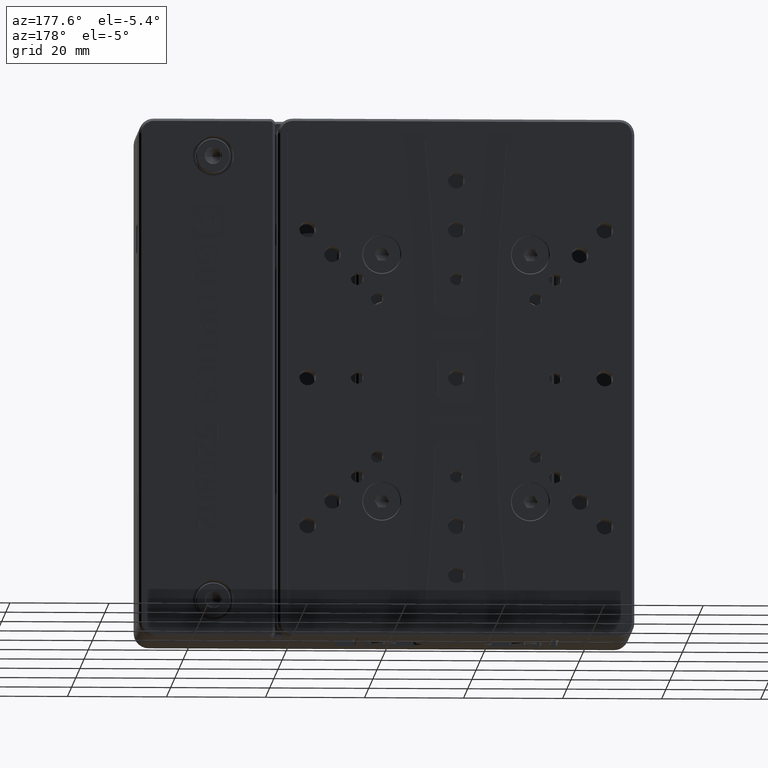
[diagram: clean part render]
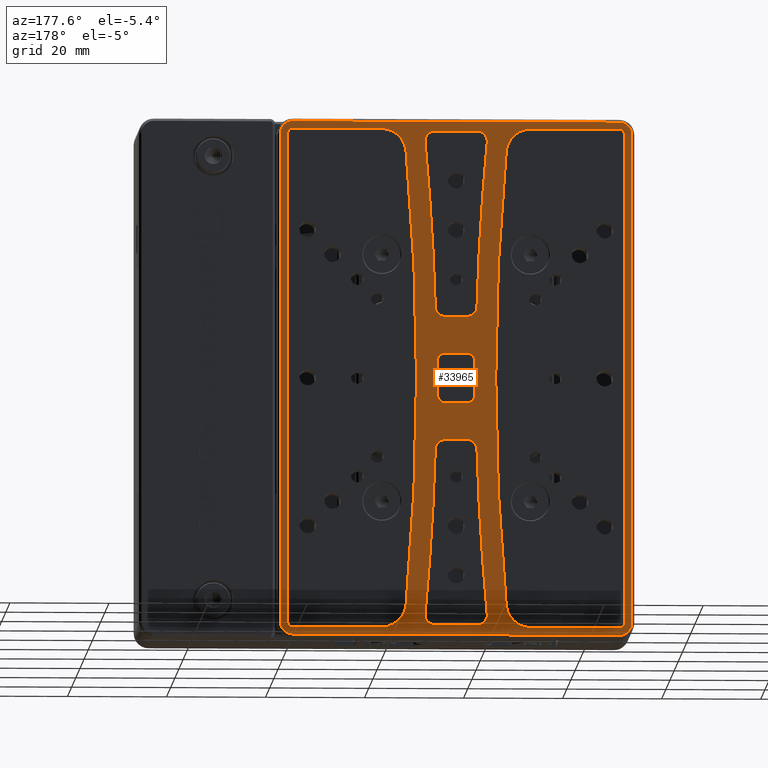
[diagram: same view with one face highlighted and labeled with its STEP entity id]
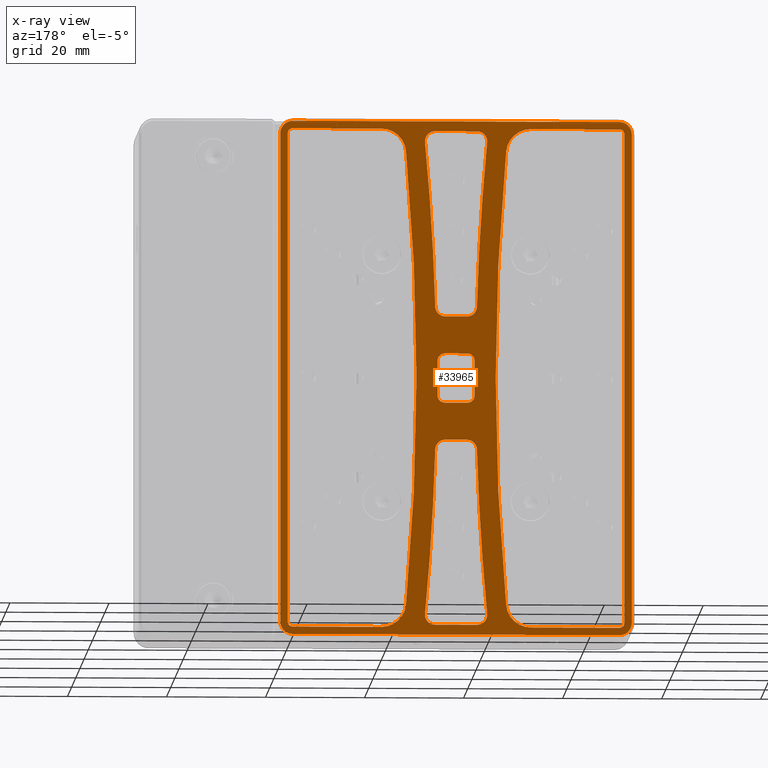
[diagram: x-ray of the same camera — body ghosted, the highlighted face saturated]
A machine part, auxiliary view. The second image highlights one B-rep face of the part: STEP entity #33965.
The next image is the same camera in x-ray: the body ghosted, the highlighted face saturated — about 0% of this face is hidden behind the body in this view.
In plain terms, the highlighted planar face has unit normal (-0, 1, 0).
Its self-contained STEP definition (entity closure, byte-faithful):
#25 = EDGE_CURVE ( 'NONE', #17213, #19173, #30582, .T. ) ;
#27 = CARTESIAN_POINT ( 'NONE',  ( -14.00000000000000000, 7.000000000000000000, 12.50000000000000000 ) ) ;
#177 = ORIENTED_EDGE ( 'NONE', *, *, #25202, .F. ) ;
#290 = CARTESIAN_POINT ( 'NONE',  ( -17.75000000000000000, 7.000000000000000000, -3.500000000000000000 ) ) ;
#546 = ORIENTED_EDGE ( 'NONE', *, *, #14687, .F. ) ;
#603 = DIRECTION ( 'NONE',  ( 1.000000000000000000, -0.0000000000000000000, -0.0000000000000000000 ) ) ;
#738 = CARTESIAN_POINT ( 'NONE',  ( -16.25000000000000000, 7.000000000000000000, -3.500000000000000000 ) ) ;
#865 = EDGE_CURVE ( 'NONE', #37944, #8095, #26633, .T. ) ;
#953 = VERTEX_POINT ( 'NONE', #4806 ) ;
#1231 = ORIENTED_EDGE ( 'NONE', *, *, #30412, .F. ) ;
#1416 = CARTESIAN_POINT ( 'NONE',  ( -47.00000000000000000, 7.000000000000000000, 49.50000000000000000 ) ) ;
#1538 = AXIS2_PLACEMENT_3D ( 'NONE', #10134, #48059, #17558 ) ;
#1604 = DIRECTION ( 'NONE',  ( 0.0000000000000000000, 1.000000000000000000, 0.0000000000000000000 ) ) ;
#1632 = EDGE_CURVE ( 'NONE', #10054, #29090, #20631, .T. ) ;
#1729 = CARTESIAN_POINT ( 'NONE',  ( -49.49999999850079746, 6.999999999998520295, 49.49999998350499908 ) ) ;
#1767 = VECTOR ( 'NONE', #43119, 1000.000000000000000 ) ;
#1769 = CARTESIAN_POINT ( 'NONE',  ( -18.28182482661999941, 7.000000000000000000, -50.00000000000059686 ) ) ;
#1880 = EDGE_CURVE ( 'NONE', #42972, #22066, #37283, .T. ) ;
#2012 = EDGE_CURVE ( 'NONE', #10859, #21619, #28587, .T. ) ;
#2104 = EDGE_CURVE ( 'NONE', #19547, #30789, #15166, .T. ) ;
#2170 = CARTESIAN_POINT ( 'NONE',  ( -47.00000000000000000, 7.000000000000000000, -50.50000000000000000 ) ) ;
#2459 = EDGE_CURVE ( 'NONE', #40581, #24917, #4395, .T. ) ;
#2473 = CARTESIAN_POINT ( 'NONE',  ( -20.27280575616005365, 7.000000000000000000, 47.81027667984089646 ) ) ;
#2744 = AXIS2_PLACEMENT_3D ( 'NONE', #7457, #22570, #27012 ) ;
#2751 = CARTESIAN_POINT ( 'NONE',  ( -14.00000000000000000, 7.000000000000000000, 50.00000000000000000 ) ) ;
#3031 = DIRECTION ( 'NONE',  ( 0.0000000000000000000, 1.000000000000000000, 0.0000000000000000000 ) ) ;
#3273 = CIRCLE ( 'NONE', #19896, 4.999999999999997335 ) ;
#3677 = CARTESIAN_POINT ( 'NONE',  ( -3.883234844506894490, 7.000000000000000000, -45.95959595959799771 ) ) ;
#3681 = EDGE_CURVE ( 'NONE', #43513, #43020, #3273, .T. ) ;
#3705 = ORIENTED_EDGE ( 'NONE', *, *, #24292, .F. ) ;
#3767 = EDGE_CURVE ( 'NONE', #16868, #45296, #43000, .T. ) ;
#3818 = LINE ( 'NONE', #26109, #25832 ) ;
#3855 = DIRECTION ( 'NONE',  ( 0.0000000000000000000, 0.0000000000000000000, -1.000000000000000000 ) ) ;
#3900 = ORIENTED_EDGE ( 'NONE', *, *, #23418, .F. ) ;
#4395 = LINE ( 'NONE', #4636, #7235 ) ;
#4636 = CARTESIAN_POINT ( 'NONE',  ( -14.00000000000000000, 7.000000003167500040, -51.99999999683250707 ) ) ;
#4658 = CARTESIAN_POINT ( 'NONE',  ( -29.09559750394000233, 7.000000000000000000, -45.50000000000000000 ) ) ;
#4806 = CARTESIAN_POINT ( 'NONE',  ( 20.00000000000000000, 7.000000000000000000, 49.50000000000000000 ) ) ;
#4808 = EDGE_LOOP ( 'NONE', ( #12051, #12299, #29079, #27269, #23272, #20934, #33591, #21140 ) ) ;
#4816 = ORIENTED_EDGE ( 'NONE', *, *, #22602, .F. ) ;
#4820 = CARTESIAN_POINT ( 'NONE',  ( 19.00000000000000000, 6.999999999998530065, -49.50000000000000000 ) ) ;
#4867 = VERTEX_POINT ( 'NONE', #14918 ) ;
#5019 = DIRECTION ( 'NONE',  ( 1.000000000000000000, -0.0000000000000000000, -0.0000000000000000000 ) ) ;
#5114 = CARTESIAN_POINT ( 'NONE',  ( -17.75000000000000000, 7.000000000000000000, 3.500000000000000000 ) ) ;
#5150 = LINE ( 'NONE', #7895, #21416 ) ;
#5573 = VECTOR ( 'NONE', #23487, 1000.000000000000000 ) ;
#5594 = DIRECTION ( 'NONE',  ( 0.0000000000000000000, 0.0000000000000000000, 1.000000000000000000 ) ) ;
#5637 = CARTESIAN_POINT ( 'NONE',  ( -16.20779958564000012, 7.000000000000000000, -14.50000000000000000 ) ) ;
#5731 = CARTESIAN_POINT ( 'NONE',  ( 19.00000000000000000, 7.000000001582649567, -51.99999999841520548 ) ) ;
#6261 = ORIENTED_EDGE ( 'NONE', *, *, #2012, .F. ) ;
#6404 = LINE ( 'NONE', #24747, #1767 ) ;
#6412 = AXIS2_PLACEMENT_3D ( 'NONE', #43045, #23942, #5594 ) ;
#6561 = DIRECTION ( 'NONE',  ( 2.056984358886074910E-17, 1.000000000000000000, 2.158625849183119980E-16 ) ) ;
#6598 = CARTESIAN_POINT ( 'NONE',  ( -11.75000000000000000, 7.000000000000000000, 5.000000000000000000 ) ) ;
#6729 = CARTESIAN_POINT ( 'NONE',  ( -49.49999999849929821, 6.999999999998530065, -49.49999998350499908 ) ) ;
#6845 = DIRECTION ( 'NONE',  ( 0.0000000000000000000, 0.0000000000000000000, 1.000000000000000000 ) ) ;
#7042 = AXIS2_PLACEMENT_3D ( 'NONE', #32168, #28420, #39847 ) ;
#7075 = AXIS2_PLACEMENT_3D ( 'NONE', #21411, #39541, #29357 ) ;
#7172 = ORIENTED_EDGE ( 'NONE', *, *, #42957, .F. ) ;
#7196 = CARTESIAN_POINT ( 'NONE',  ( -522.0000000000000000, 7.000000000000000000, 0.0000000000000000000 ) ) ;
#7235 = VECTOR ( 'NONE', #39088, 1000.000000000000000 ) ;
#7456 = EDGE_CURVE ( 'NONE', #20579, #7673, #11902, .T. ) ;
#7457 = CARTESIAN_POINT ( 'NONE',  ( -11.79220041435999988, 7.000000000000000000, -14.50000000000000000 ) ) ;
#7590 = CIRCLE ( 'NONE', #9181, 2.499999999998545164 ) ;
#7673 = VERTEX_POINT ( 'NONE', #18047 ) ;
#7895 = CARTESIAN_POINT ( 'NONE',  ( 20.00000000000000000, 7.000000000000000000, 0.0000000000000000000 ) ) ;
#7944 = DIRECTION ( 'NONE',  ( -2.056984358884024796E-17, 1.000000000000000000, -2.158625849182055017E-16 ) ) ;
#8095 = VERTEX_POINT ( 'NONE', #6598 ) ;
#8126 = LINE ( 'NONE', #24634, #5573 ) ;
#8148 = AXIS2_PLACEMENT_3D ( 'NONE', #22824, #45881, #23304 ) ;
#8237 = ORIENTED_EDGE ( 'NONE', *, *, #35208, .F. ) ;
#8417 = CARTESIAN_POINT ( 'NONE',  ( -14.00000000000000000, 7.000000000000000000, 51.99999999683000595 ) ) ;
#8545 = AXIS2_PLACEMENT_3D ( 'NONE', #29764, #26531, #26281 ) ;
#8597 = ORIENTED_EDGE ( 'NONE', *, *, #20692, .F. ) ;
#8686 = CARTESIAN_POINT ( 'NONE',  ( -20.27280575615949942, 7.000000000000000000, -47.81027667984100304 ) ) ;
#8766 = VERTEX_POINT ( 'NONE', #27563 ) ;
#8902 = DIRECTION ( 'NONE',  ( 0.0000000000000000000, 1.000000000000000000, 0.0000000000000000000 ) ) ;
#8932 = AXIS2_PLACEMENT_3D ( 'NONE', #15391, #38206, #42166 ) ;
#9181 = AXIS2_PLACEMENT_3D ( 'NONE', #33683, #41602, #14342 ) ;
#9196 = ORIENTED_EDGE ( 'NONE', *, *, #21988, .F. ) ;
#9202 = AXIS2_PLACEMENT_3D ( 'NONE', #14380, #45363, #18823 ) ;
#9759 = CARTESIAN_POINT ( 'NONE',  ( 1.095597503939000017, 7.000000000000000000, -45.50000000000000000 ) ) ;
#9780 = VECTOR ( 'NONE', #46738, 1000.000000000000000 ) ;
#9831 = DIRECTION ( 'NONE',  ( 0.0000000000000000000, 0.0000000000000000000, 1.000000000000000000 ) ) ;
#10054 = VERTEX_POINT ( 'NONE', #2473 ) ;
#10134 = CARTESIAN_POINT ( 'NONE',  ( 1.095597503939000017, 7.000000000000000000, 45.50000000000000000 ) ) ;
#10273 = CIRCLE ( 'NONE', #13448, 1.000000000000000888 ) ;
#10322 = EDGE_CURVE ( 'NONE', #953, #32300, #5150, .T. ) ;
#10592 = DIRECTION ( 'NONE',  ( 0.0000000000000000000, 0.0000000000000000000, 1.000000000000000000 ) ) ;
#10677 = AXIS2_PLACEMENT_3D ( 'NONE', #21067, #36208, #30607 ) ;
#10734 = DIRECTION ( 'NONE',  ( 0.0000000000000000000, 1.000000000000000000, 0.0000000000000000000 ) ) ;
#10791 = EDGE_LOOP ( 'NONE', ( #7172, #3705, #30232, #17003, #47362, #45453, #40679, #47543 ) ) ;
#10859 = VERTEX_POINT ( 'NONE', #18387 ) ;
#10873 = CARTESIAN_POINT ( 'NONE',  ( -48.00000000000000000, 7.000000000000000000, -49.50000000000000000 ) ) ;
#11107 = CARTESIAN_POINT ( 'NONE',  ( -11.79220041435999988, 7.000000000000000000, 14.50000000000000000 ) ) ;
#11202 = CARTESIAN_POINT ( 'NONE',  ( -49.49999999699999620, 7.000000000000000000, 0.0000000000000000000 ) ) ;
#11277 = DIRECTION ( 'NONE',  ( 6.213806916892490276E-18, 1.000000000000000000, -2.167513843928744975E-16 ) ) ;
#11449 = CIRCLE ( 'NONE', #2744, 2.000000000001609823 ) ;
#11574 = CARTESIAN_POINT ( 'NONE',  ( 494.0000000000000000, 7.000000000000000000, 0.0000000000000000000 ) ) ;
#11746 = EDGE_CURVE ( 'NONE', #48449, #40856, #6404, .T. ) ;
#11810 = VERTEX_POINT ( 'NONE', #21031 ) ;
#11902 = LINE ( 'NONE', #38912, #42307 ) ;
#12051 = ORIENTED_EDGE ( 'NONE', *, *, #7456, .F. ) ;
#12196 = CARTESIAN_POINT ( 'NONE',  ( -14.00000000000000000, 7.000000000000000000, -50.50000000000000000 ) ) ;
#12299 = ORIENTED_EDGE ( 'NONE', *, *, #22623, .F. ) ;
#12429 = ORIENTED_EDGE ( 'NONE', *, *, #3767, .F. ) ;
#12502 = DIRECTION ( 'NONE',  ( 1.000000000000000000, 0.0000000000000000000, 0.0000000000000000000 ) ) ;
#12507 = CIRCLE ( 'NONE', #8545, 2.499999999998530953 ) ;
#12635 = DIRECTION ( 'NONE',  ( -1.000000000000000000, -0.0000000000000000000, -0.0000000000000000000 ) ) ;
#12658 = EDGE_CURVE ( 'NONE', #19497, #25916, #19113, .T. ) ;
#12833 = VERTEX_POINT ( 'NONE', #1729 ) ;
#13001 = AXIS2_PLACEMENT_3D ( 'NONE', #5637, #47281, #13324 ) ;
#13273 = CIRCLE ( 'NONE', #15664, 2.499999999998530953 ) ;
#13317 = FACE_BOUND ( 'NONE', #13763, .T. ) ;
#13324 = DIRECTION ( 'NONE',  ( 0.0000000000000000000, 0.0000000000000000000, 1.000000000000000000 ) ) ;
#13410 = VECTOR ( 'NONE', #5019, 1000.000000000000000 ) ;
#13448 = AXIS2_PLACEMENT_3D ( 'NONE', #48739, #26412, #6845 ) ;
#13680 = CIRCLE ( 'NONE', #47718, 1.000000000000000888 ) ;
#13763 = EDGE_LOOP ( 'NONE', ( #47726, #31764, #40040, #177, #17414, #45727, #8237, #33612 ) ) ;
#13785 = CARTESIAN_POINT ( 'NONE',  ( -9.793021756594050942, 7.000000000000000000, 14.44268774703775904 ) ) ;
#14096 = VERTEX_POINT ( 'NONE', #2170 ) ;
#14342 = DIRECTION ( 'NONE',  ( 1.000000000000000000, -3.469446951955633180E-16, 0.0000000000000000000 ) ) ;
#14380 = CARTESIAN_POINT ( 'NONE',  ( -9.718175173378998721, 7.000000000000000000, -48.00000000000000000 ) ) ;
#14464 = CIRCLE ( 'NONE', #32649, 4.999999999999997335 ) ;
#14507 = VERTEX_POINT ( 'NONE', #15959 ) ;
#14636 = CARTESIAN_POINT ( 'NONE',  ( -9.718175173378998721, 7.000000000000000000, -50.00000000000000000 ) ) ;
#14687 = EDGE_CURVE ( 'NONE', #11810, #953, #13680, .T. ) ;
#14918 = CARTESIAN_POINT ( 'NONE',  ( -11.75000000000000000, 7.000000000000000000, -5.000000000000000000 ) ) ;
#15073 = CARTESIAN_POINT ( 'NONE',  ( -522.0000000000000000, 7.000000000000000000, 0.0000000000000000000 ) ) ;
#15166 = CIRCLE ( 'NONE', #26235, 1.500000000000000000 ) ;
#15391 = CARTESIAN_POINT ( 'NONE',  ( -11.75000000000000000, 7.000000000000000000, 3.500000000000000000 ) ) ;
#15485 = CIRCLE ( 'NONE', #47958, 2.000000000001125766 ) ;
#15493 = EDGE_CURVE ( 'NONE', #38487, #43513, #33417, .T. ) ;
#15595 = ORIENTED_EDGE ( 'NONE', *, *, #28663, .F. ) ;
#15664 = AXIS2_PLACEMENT_3D ( 'NONE', #4820, #19933, #12502 ) ;
#15899 = EDGE_CURVE ( 'NONE', #7673, #4867, #32048, .T. ) ;
#15928 = AXIS2_PLACEMENT_3D ( 'NONE', #41678, #48364, #37960 ) ;
#15959 = CARTESIAN_POINT ( 'NONE',  ( -11.79220041435999988, 7.000000000000000000, -12.49999999999919886 ) ) ;
#16594 = CIRCLE ( 'NONE', #7075, 504.0000000000000000 ) ;
#16694 = VERTEX_POINT ( 'NONE', #24368 ) ;
#16868 = VERTEX_POINT ( 'NONE', #22617 ) ;
#16911 = EDGE_CURVE ( 'NONE', #32482, #37944, #32901, .T. ) ;
#17003 = ORIENTED_EDGE ( 'NONE', *, *, #37760, .F. ) ;
#17035 = PLANE ( 'NONE',  #7042 ) ;
#17050 = VERTEX_POINT ( 'NONE', #1769 ) ;
#17110 = EDGE_CURVE ( 'NONE', #43020, #43751, #35309, .T. ) ;
#17193 = DIRECTION ( 'NONE',  ( 1.000000000000000000, -0.0000000000000000000, -0.0000000000000000000 ) ) ;
#17213 = VERTEX_POINT ( 'NONE', #30168 ) ;
#17414 = ORIENTED_EDGE ( 'NONE', *, *, #46975, .F. ) ;
#17461 = VECTOR ( 'NONE', #37744, 1000.000000000000000 ) ;
#17558 = DIRECTION ( 'NONE',  ( 0.0000000000000000000, 0.0000000000000000000, 1.000000000000000000 ) ) ;
#17843 = ORIENTED_EDGE ( 'NONE', *, *, #34105, .F. ) ;
#18008 = CIRCLE ( 'NONE', #20414, 4.999999999999997335 ) ;
#18047 = CARTESIAN_POINT ( 'NONE',  ( -10.25000000000000000, 7.000000000000000000, -3.500000000000000000 ) ) ;
#18141 = CARTESIAN_POINT ( 'NONE',  ( 19.00000000000000000, 7.000000000000000000, 49.50000000000000000 ) ) ;
#18156 = ORIENTED_EDGE ( 'NONE', *, *, #27413, .F. ) ;
#18387 = CARTESIAN_POINT ( 'NONE',  ( -24.11676515549299893, 7.000000000000000000, 45.95959595959799771 ) ) ;
#18823 = DIRECTION ( 'NONE',  ( 0.0000000000000000000, 0.0000000000000000000, 1.000000000000000000 ) ) ;
#19096 = ORIENTED_EDGE ( 'NONE', *, *, #31617, .F. ) ;
#19113 = CIRCLE ( 'NONE', #15928, 2.499999999998530953 ) ;
#19173 = VERTEX_POINT ( 'NONE', #14636 ) ;
#19432 = AXIS2_PLACEMENT_3D ( 'NONE', #1416, #27181, #19521 ) ;
#19497 = VERTEX_POINT ( 'NONE', #37571 ) ;
#19521 = DIRECTION ( 'NONE',  ( 0.0000000000000000000, 0.0000000000000000000, 1.000000000000000000 ) ) ;
#19543 = AXIS2_PLACEMENT_3D ( 'NONE', #15073, #37397, #37148 ) ;
#19547 = VERTEX_POINT ( 'NONE', #42512 ) ;
#19558 = EDGE_CURVE ( 'NONE', #40581, #20213, #13273, .T. ) ;
#19717 = CARTESIAN_POINT ( 'NONE',  ( -9.793021756595489791, 7.000000000000000000, -14.44268774703784075 ) ) ;
#19774 = DIRECTION ( 'NONE',  ( 0.0000000000000000000, 1.000000000000000000, 0.0000000000000000000 ) ) ;
#19896 = AXIS2_PLACEMENT_3D ( 'NONE', #9759, #1604, #43482 ) ;
#19933 = DIRECTION ( 'NONE',  ( -1.734723475977824725E-16, -1.000000000000000000, -3.611118645730314473E-31 ) ) ;
#20054 = EDGE_CURVE ( 'NONE', #24917, #37247, #12507, .T. ) ;
#20213 = VERTEX_POINT ( 'NONE', #23530 ) ;
#20269 = DIRECTION ( 'NONE',  ( -0.0000000000000000000, -0.0000000000000000000, -1.000000000000000000 ) ) ;
#20338 = VERTEX_POINT ( 'NONE', #33986 ) ;
#20414 = AXIS2_PLACEMENT_3D ( 'NONE', #45041, #29173, #37857 ) ;
#20579 = VERTEX_POINT ( 'NONE', #39883 ) ;
#20631 = CIRCLE ( 'NONE', #6412, 2.000000000001125766 ) ;
#20692 = EDGE_CURVE ( 'NONE', #44309, #8766, #22048, .T. ) ;
#20934 = ORIENTED_EDGE ( 'NONE', *, *, #2104, .F. ) ;
#21031 = CARTESIAN_POINT ( 'NONE',  ( 19.00000000000000000, 7.000000000000000000, 50.50000000000000000 ) ) ;
#21067 = CARTESIAN_POINT ( 'NONE',  ( -11.75000000000000000, 7.000000000000000000, -3.500000000000000000 ) ) ;
#21140 = ORIENTED_EDGE ( 'NONE', *, *, #15899, .F. ) ;
#21213 = AXIS2_PLACEMENT_3D ( 'NONE', #38699, #42904, #39180 ) ;
#21350 = VERTEX_POINT ( 'NONE', #39158 ) ;
#21411 = CARTESIAN_POINT ( 'NONE',  ( 494.0000000000000000, 7.000000000000000000, 0.0000000000000000000 ) ) ;
#21416 = VECTOR ( 'NONE', #20269, 1000.000000000000000 ) ;
#21491 = EDGE_CURVE ( 'NONE', #43751, #45870, #41140, .T. ) ;
#21619 = VERTEX_POINT ( 'NONE', #30201 ) ;
#21630 = LINE ( 'NONE', #47918, #36786 ) ;
#21905 = ORIENTED_EDGE ( 'NONE', *, *, #36559, .F. ) ;
#21969 = FACE_BOUND ( 'NONE', #34049, .T. ) ;
#21988 = EDGE_CURVE ( 'NONE', #14096, #48449, #10273, .T. ) ;
#22041 = CIRCLE ( 'NONE', #45807, 2.000000000000126565 ) ;
#22048 = CIRCLE ( 'NONE', #22840, 2.000000000001609823 ) ;
#22066 = VERTEX_POINT ( 'NONE', #27382 ) ;
#22570 = DIRECTION ( 'NONE',  ( -6.213806916917330150E-18, 1.000000000000000000, 2.167513843933069905E-16 ) ) ;
#22602 = EDGE_CURVE ( 'NONE', #32300, #38487, #23959, .T. ) ;
#22617 = CARTESIAN_POINT ( 'NONE',  ( -47.00000000000000000, 7.000000000000000000, 50.50000000000000000 ) ) ;
#22623 = EDGE_CURVE ( 'NONE', #8095, #20579, #35057, .T. ) ;
#22732 = CARTESIAN_POINT ( 'NONE',  ( 20.00000000000000000, 7.000000000000000000, -49.50000000000000000 ) ) ;
#22799 = DIRECTION ( 'NONE',  ( 0.0000000000000000000, 1.000000000000000000, 0.0000000000000000000 ) ) ;
#22824 = CARTESIAN_POINT ( 'NONE',  ( 19.00000000000000000, 7.000000000000000000, -49.50000000000000000 ) ) ;
#22840 = AXIS2_PLACEMENT_3D ( 'NONE', #11107, #26217, #44576 ) ;
#22847 = ORIENTED_EDGE ( 'NONE', *, *, #11746, .F. ) ;
#22873 = CARTESIAN_POINT ( 'NONE',  ( -3.883234844505884631, 7.000000000000000000, 45.95959595959799771 ) ) ;
#23045 = AXIS2_PLACEMENT_3D ( 'NONE', #34349, #11277, #3855 ) ;
#23056 = DIRECTION ( 'NONE',  ( 0.0000000000000000000, 0.0000000000000000000, -1.000000000000000000 ) ) ;
#23096 = LINE ( 'NONE', #12196, #24031 ) ;
#23272 = ORIENTED_EDGE ( 'NONE', *, *, #35882, .F. ) ;
#23304 = DIRECTION ( 'NONE',  ( 0.0000000000000000000, 0.0000000000000000000, 1.000000000000000000 ) ) ;
#23418 = EDGE_CURVE ( 'NONE', #29090, #46505, #39933, .T. ) ;
#23487 = DIRECTION ( 'NONE',  ( -0.0000000000000000000, -0.0000000000000000000, 1.000000000000000000 ) ) ;
#23530 = CARTESIAN_POINT ( 'NONE',  ( 21.49999999849925203, 6.999999999998530065, -49.49999998762920228 ) ) ;
#23702 = EDGE_CURVE ( 'NONE', #20338, #14096, #23096, .T. ) ;
#23782 = CARTESIAN_POINT ( 'NONE',  ( -14.00000000000000000, 7.000000000000000000, -5.000000000000000000 ) ) ;
#23849 = CARTESIAN_POINT ( 'NONE',  ( -14.00000000000000000, 7.000000000000000000, -12.50000000000000000 ) ) ;
#23942 = DIRECTION ( 'NONE',  ( 0.0000000000000000000, 1.000000000000000000, 0.0000000000000000000 ) ) ;
#23959 = CIRCLE ( 'NONE', #8148, 1.000000000000000888 ) ;
#24031 = VECTOR ( 'NONE', #38725, 1000.000000000000000 ) ;
#24292 = EDGE_CURVE ( 'NONE', #25916, #16694, #42877, .T. ) ;
#24368 = CARTESIAN_POINT ( 'NONE',  ( -46.99999998756499764, 6.999999999998520295, 51.99999999841430309 ) ) ;
#24529 = CARTESIAN_POINT ( 'NONE',  ( 19.00000000000000000, 7.000000000000000000, -50.50000000000000000 ) ) ;
#24634 = CARTESIAN_POINT ( 'NONE',  ( -17.75000000000000000, 7.000000000000000000, 0.0000000000000000000 ) ) ;
#24705 = FACE_BOUND ( 'NONE', #4808, .T. ) ;
#24747 = CARTESIAN_POINT ( 'NONE',  ( -48.00000000000000000, 7.000000000000000000, 0.0000000000000000000 ) ) ;
#24886 = ORIENTED_EDGE ( 'NONE', *, *, #17110, .F. ) ;
#24917 = VERTEX_POINT ( 'NONE', #45517 ) ;
#25202 = EDGE_CURVE ( 'NONE', #14507, #41638, #11449, .T. ) ;
#25429 = CARTESIAN_POINT ( 'NONE',  ( -9.718175173378998721, 7.000000000000000000, 50.00000000000000000 ) ) ;
#25683 = FACE_OUTER_BOUND ( 'NONE', #10791, .T. ) ;
#25808 = CARTESIAN_POINT ( 'NONE',  ( -18.28182482661999941, 7.000000000000000000, 50.00000000000000000 ) ) ;
#25832 = VECTOR ( 'NONE', #41491, 1000.000000000000000 ) ;
#25916 = VERTEX_POINT ( 'NONE', #38327 ) ;
#26109 = CARTESIAN_POINT ( 'NONE',  ( -14.00000000000000000, 7.000000000000000000, 50.50000000000000000 ) ) ;
#26217 = DIRECTION ( 'NONE',  ( 0.0000000000000000000, 1.000000000000000000, 0.0000000000000000000 ) ) ;
#26235 = AXIS2_PLACEMENT_3D ( 'NONE', #738, #8902, #46095 ) ;
#26281 = DIRECTION ( 'NONE',  ( 1.000000000000000000, 0.0000000000000000000, 0.0000000000000000000 ) ) ;
#26412 = DIRECTION ( 'NONE',  ( 0.0000000000000000000, 1.000000000000000000, 0.0000000000000000000 ) ) ;
#26452 = CARTESIAN_POINT ( 'NONE',  ( -7.727194243841020160, 7.000000000000000000, 47.81027667984100304 ) ) ;
#26531 = DIRECTION ( 'NONE',  ( 1.734723475977824725E-16, 1.000000000000000000, -0.0000000000000000000 ) ) ;
#26633 = LINE ( 'NONE', #34577, #28157 ) ;
#26668 = EDGE_CURVE ( 'NONE', #8766, #42972, #29282, .T. ) ;
#26919 = AXIS2_PLACEMENT_3D ( 'NONE', #47462, #48199, #29360 ) ;
#27012 = DIRECTION ( 'NONE',  ( -1.734723475975410811E-15, 0.0000000000000000000, -1.000000000000000000 ) ) ;
#27181 = DIRECTION ( 'NONE',  ( 0.0000000000000000000, 1.000000000000000000, 0.0000000000000000000 ) ) ;
#27269 = ORIENTED_EDGE ( 'NONE', *, *, #16911, .F. ) ;
#27382 = CARTESIAN_POINT ( 'NONE',  ( -18.20697824340720317, 7.000000000000000000, 14.44268774703779812 ) ) ;
#27413 = EDGE_CURVE ( 'NONE', #40856, #16868, #48744, .T. ) ;
#27563 = CARTESIAN_POINT ( 'NONE',  ( -11.79220041435999988, 7.000000000000000000, 12.50000000000000000 ) ) ;
#27639 = CARTESIAN_POINT ( 'NONE',  ( 21.49999999699999975, 7.000000000000000000, 0.0000000000000000000 ) ) ;
#28157 = VECTOR ( 'NONE', #603, 1000.000000000000000 ) ;
#28321 = EDGE_CURVE ( 'NONE', #4867, #19547, #35935, .T. ) ;
#28340 = CARTESIAN_POINT ( 'NONE',  ( 1.095597503939000017, 7.000000000000000000, -50.50000000000000000 ) ) ;
#28420 = DIRECTION ( 'NONE',  ( -0.0000000000000000000, 1.000000000000000000, 0.0000000000000000000 ) ) ;
#28473 = CARTESIAN_POINT ( 'NONE',  ( -48.00000000000000000, 7.000000000000000000, 49.50000000000000000 ) ) ;
#28511 = DIRECTION ( 'NONE',  ( 1.000000000000000000, -0.0000000000000000000, -0.0000000000000000000 ) ) ;
#28587 = CIRCLE ( 'NONE', #36530, 500.0000000000000000 ) ;
#28663 = EDGE_CURVE ( 'NONE', #45870, #11810, #3818, .T. ) ;
#29079 = ORIENTED_EDGE ( 'NONE', *, *, #865, .F. ) ;
#29090 = VERTEX_POINT ( 'NONE', #25808 ) ;
#29173 = DIRECTION ( 'NONE',  ( 0.0000000000000000000, 1.000000000000000000, 0.0000000000000000000 ) ) ;
#29256 = VERTEX_POINT ( 'NONE', #8686 ) ;
#29282 = LINE ( 'NONE', #27, #44699 ) ;
#29357 = DIRECTION ( 'NONE',  ( 0.0000000000000000000, 0.0000000000000000000, 1.000000000000000000 ) ) ;
#29360 = DIRECTION ( 'NONE',  ( 1.519948188474916617E-14, 0.0000000000000000000, 1.000000000000000000 ) ) ;
#29422 = FACE_BOUND ( 'NONE', #48129, .T. ) ;
#29434 = DIRECTION ( 'NONE',  ( 0.0000000000000000000, 1.000000000000000000, 0.0000000000000000000 ) ) ;
#29569 = CARTESIAN_POINT ( 'NONE',  ( -16.25000000000000000, 7.000000000000000000, 3.500000000000000000 ) ) ;
#29764 = CARTESIAN_POINT ( 'NONE',  ( -47.00000000000000000, 6.999999999998530065, -49.50000000000000000 ) ) ;
#30168 = CARTESIAN_POINT ( 'NONE',  ( -7.727194243839909937, 7.000000000000000000, -47.81027667984100304 ) ) ;
#30201 = CARTESIAN_POINT ( 'NONE',  ( -24.11676515549510214, 7.000000000000000000, -45.95959595959769928 ) ) ;
#30232 = ORIENTED_EDGE ( 'NONE', *, *, #12658, .F. ) ;
#30265 = DIRECTION ( 'NONE',  ( -1.000000000000000000, -0.0000000000000000000, -0.0000000000000000000 ) ) ;
#30294 = ORIENTED_EDGE ( 'NONE', *, *, #43985, .F. ) ;
#30412 = EDGE_CURVE ( 'NONE', #45296, #10859, #18008, .T. ) ;
#30582 = CIRCLE ( 'NONE', #9202, 2.000000000000126565 ) ;
#30607 = DIRECTION ( 'NONE',  ( 0.0000000000000000000, 0.0000000000000000000, 1.000000000000000000 ) ) ;
#30789 = VERTEX_POINT ( 'NONE', #290 ) ;
#31244 = VECTOR ( 'NONE', #41827, 1000.000000000000000 ) ;
#31617 = EDGE_CURVE ( 'NONE', #46505, #32315, #22041, .T. ) ;
#31636 = LINE ( 'NONE', #27639, #9780 ) ;
#31764 = ORIENTED_EDGE ( 'NONE', *, *, #25, .F. ) ;
#32048 = CIRCLE ( 'NONE', #10677, 1.500000000000000000 ) ;
#32168 = CARTESIAN_POINT ( 'NONE',  ( -50.92000000000000171, 7.000000000000000000, 54.08000000000000540 ) ) ;
#32300 = VERTEX_POINT ( 'NONE', #22732 ) ;
#32315 = VERTEX_POINT ( 'NONE', #26452 ) ;
#32461 = CARTESIAN_POINT ( 'NONE',  ( -29.09559750394000233, 7.000000000000000000, 50.50000000000000000 ) ) ;
#32482 = VERTEX_POINT ( 'NONE', #5114 ) ;
#32649 = AXIS2_PLACEMENT_3D ( 'NONE', #4658, #19774, #9831 ) ;
#32901 = CIRCLE ( 'NONE', #43189, 1.500000000000000000 ) ;
#33008 = EDGE_CURVE ( 'NONE', #41638, #17213, #40233, .T. ) ;
#33417 = LINE ( 'NONE', #44802, #31244 ) ;
#33591 = ORIENTED_EDGE ( 'NONE', *, *, #28321, .F. ) ;
#33612 = ORIENTED_EDGE ( 'NONE', *, *, #40753, .F. ) ;
#33615 = VECTOR ( 'NONE', #39394, 1000.000000000000000 ) ;
#33651 = CARTESIAN_POINT ( 'NONE',  ( -16.20779958564000012, 7.000000000000000000, -12.50000000000000000 ) ) ;
#33683 = CARTESIAN_POINT ( 'NONE',  ( -47.00000000000000000, 6.999999999998520295, 49.50000000000000000 ) ) ;
#33839 = CARTESIAN_POINT ( 'NONE',  ( -16.25000000000000000, 7.000000000000000000, 5.000000000000000000 ) ) ;
#33965 = ADVANCED_FACE ( 'NONE', ( #29422, #21969, #13317, #24705, #44542, #25683 ), #17035, .T. ) ;
#33974 = VERTEX_POINT ( 'NONE', #33651 ) ;
#33986 = CARTESIAN_POINT ( 'NONE',  ( -29.09559750394000233, 7.000000000000000000, -50.50000000000000000 ) ) ;
#34049 = EDGE_LOOP ( 'NONE', ( #44788, #8597, #17843, #19096, #3900, #36154, #30294, #38603 ) ) ;
#34105 = EDGE_CURVE ( 'NONE', #32315, #44309, #16594, .T. ) ;
#34349 = CARTESIAN_POINT ( 'NONE',  ( -16.20779958564000012, 7.000000000000000000, 14.50000000000000000 ) ) ;
#34577 = CARTESIAN_POINT ( 'NONE',  ( -14.00000000000000000, 7.000000000000000000, 5.000000000000000000 ) ) ;
#35057 = CIRCLE ( 'NONE', #8932, 1.500000000000000000 ) ;
#35208 = EDGE_CURVE ( 'NONE', #29256, #21350, #48307, .T. ) ;
#35309 = CIRCLE ( 'NONE', #47139, 500.0000000000000000 ) ;
#35539 = EDGE_CURVE ( 'NONE', #12833, #37247, #48394, .T. ) ;
#35716 = VECTOR ( 'NONE', #17193, 1000.000000000000000 ) ;
#35882 = EDGE_CURVE ( 'NONE', #30789, #32482, #8126, .T. ) ;
#35935 = LINE ( 'NONE', #23782, #37713 ) ;
#36154 = ORIENTED_EDGE ( 'NONE', *, *, #1632, .F. ) ;
#36208 = DIRECTION ( 'NONE',  ( 0.0000000000000000000, 1.000000000000000000, 0.0000000000000000000 ) ) ;
#36530 = AXIS2_PLACEMENT_3D ( 'NONE', #7196, #22799, #41659 ) ;
#36559 = EDGE_CURVE ( 'NONE', #21619, #20338, #14464, .T. ) ;
#36786 = VECTOR ( 'NONE', #40247, 1000.000000000000000 ) ;
#37076 = EDGE_LOOP ( 'NONE', ( #18156, #22847, #9196, #43908, #21905, #6261, #1231, #12429 ) ) ;
#37148 = DIRECTION ( 'NONE',  ( 1.608061126937230789E-14, 0.0000000000000000000, 1.000000000000000000 ) ) ;
#37247 = VERTEX_POINT ( 'NONE', #6729 ) ;
#37283 = CIRCLE ( 'NONE', #23045, 2.000000000005604850 ) ;
#37397 = DIRECTION ( 'NONE',  ( -0.0000000000000000000, -1.000000000000000000, -0.0000000000000000000 ) ) ;
#37501 = VECTOR ( 'NONE', #28511, 1000.000000000000000 ) ;
#37571 = CARTESIAN_POINT ( 'NONE',  ( 21.49999999849925203, 6.999999999998530065, 49.49999998350499908 ) ) ;
#37713 = VECTOR ( 'NONE', #12635, 1000.000000000000000 ) ;
#37744 = DIRECTION ( 'NONE',  ( -0.0000000000000000000, -0.0000000000000000000, -1.000000000000000000 ) ) ;
#37760 = EDGE_CURVE ( 'NONE', #20213, #19497, #31636, .T. ) ;
#37857 = DIRECTION ( 'NONE',  ( 0.0000000000000000000, 0.0000000000000000000, 1.000000000000000000 ) ) ;
#37944 = VERTEX_POINT ( 'NONE', #33839 ) ;
#37960 = DIRECTION ( 'NONE',  ( 1.000000000000000000, -3.469446951955652901E-16, 0.0000000000000000000 ) ) ;
#38206 = DIRECTION ( 'NONE',  ( 0.0000000000000000000, 1.000000000000000000, 0.0000000000000000000 ) ) ;
#38327 = CARTESIAN_POINT ( 'NONE',  ( 18.99999998756500119, 6.999999999998530065, 51.99999999841570286 ) ) ;
#38487 = VERTEX_POINT ( 'NONE', #24529 ) ;
#38559 = CIRCLE ( 'NONE', #19543, 504.0000000000000000 ) ;
#38603 = ORIENTED_EDGE ( 'NONE', *, *, #1880, .F. ) ;
#38699 = CARTESIAN_POINT ( 'NONE',  ( 494.0000000000000000, 7.000000000000000000, 0.0000000000000000000 ) ) ;
#38725 = DIRECTION ( 'NONE',  ( -1.000000000000000000, -0.0000000000000000000, -0.0000000000000000000 ) ) ;
#38782 = EDGE_CURVE ( 'NONE', #21350, #33974, #43089, .T. ) ;
#38912 = CARTESIAN_POINT ( 'NONE',  ( -10.25000000000000000, 7.000000000000000000, 0.0000000000000000000 ) ) ;
#39088 = DIRECTION ( 'NONE',  ( -1.000000000000000000, -0.0000000000000000000, -0.0000000000000000000 ) ) ;
#39158 = CARTESIAN_POINT ( 'NONE',  ( -18.20697824340994941, 7.000000000000000000, -14.44268774703770042 ) ) ;
#39180 = DIRECTION ( 'NONE',  ( 0.0000000000000000000, 0.0000000000000000000, 1.000000000000000000 ) ) ;
#39376 = EDGE_CURVE ( 'NONE', #19173, #17050, #21630, .T. ) ;
#39379 = ORIENTED_EDGE ( 'NONE', *, *, #10322, .F. ) ;
#39394 = DIRECTION ( 'NONE',  ( -1.000000000000000000, -0.0000000000000000000, -0.0000000000000000000 ) ) ;
#39497 = ORIENTED_EDGE ( 'NONE', *, *, #21491, .F. ) ;
#39517 = CARTESIAN_POINT ( 'NONE',  ( -14.00000000000000000, 7.000000000000000000, 50.50000000000000000 ) ) ;
#39541 = DIRECTION ( 'NONE',  ( -0.0000000000000000000, -1.000000000000000000, -0.0000000000000000000 ) ) ;
#39847 = DIRECTION ( 'NONE',  ( 1.000000000000000000, 0.0000000000000000000, 0.0000000000000000000 ) ) ;
#39883 = CARTESIAN_POINT ( 'NONE',  ( -10.25000000000000000, 7.000000000000000000, 3.500000000000000000 ) ) ;
#39933 = LINE ( 'NONE', #2751, #37501 ) ;
#40040 = ORIENTED_EDGE ( 'NONE', *, *, #33008, .F. ) ;
#40233 = CIRCLE ( 'NONE', #21213, 504.0000000000000000 ) ;
#40247 = DIRECTION ( 'NONE',  ( -1.000000000000000000, -0.0000000000000000000, -0.0000000000000000000 ) ) ;
#40581 = VERTEX_POINT ( 'NONE', #5731 ) ;
#40679 = ORIENTED_EDGE ( 'NONE', *, *, #20054, .T. ) ;
#40753 = EDGE_CURVE ( 'NONE', #17050, #29256, #15485, .T. ) ;
#40856 = VERTEX_POINT ( 'NONE', #28473 ) ;
#41024 = CARTESIAN_POINT ( 'NONE',  ( -9.718175173378998721, 7.000000000000000000, 48.00000000000000000 ) ) ;
#41140 = CIRCLE ( 'NONE', #1538, 4.999999999999997335 ) ;
#41491 = DIRECTION ( 'NONE',  ( 1.000000000000000000, -0.0000000000000000000, -0.0000000000000000000 ) ) ;
#41602 = DIRECTION ( 'NONE',  ( -1.734723475977824725E-16, -1.000000000000000000, 0.0000000000000000000 ) ) ;
#41638 = VERTEX_POINT ( 'NONE', #19717 ) ;
#41659 = DIRECTION ( 'NONE',  ( 0.0000000000000000000, 0.0000000000000000000, 1.000000000000000000 ) ) ;
#41678 = CARTESIAN_POINT ( 'NONE',  ( 19.00000000000000000, 6.999999999998530065, 49.50000000000000000 ) ) ;
#41827 = DIRECTION ( 'NONE',  ( -1.000000000000000000, -0.0000000000000000000, -0.0000000000000000000 ) ) ;
#41922 = CARTESIAN_POINT ( 'NONE',  ( -18.28182482661999941, 7.000000000000000000, -48.00000000000000000 ) ) ;
#42166 = DIRECTION ( 'NONE',  ( 0.0000000000000000000, 0.0000000000000000000, 1.000000000000000000 ) ) ;
#42307 = VECTOR ( 'NONE', #42393, 1000.000000000000000 ) ;
#42393 = DIRECTION ( 'NONE',  ( -0.0000000000000000000, -0.0000000000000000000, -1.000000000000000000 ) ) ;
#42475 = LINE ( 'NONE', #23849, #13410 ) ;
#42512 = CARTESIAN_POINT ( 'NONE',  ( -16.25000000000000000, 7.000000000000000000, -5.000000000000000000 ) ) ;
#42877 = LINE ( 'NONE', #8417, #33615 ) ;
#42904 = DIRECTION ( 'NONE',  ( -0.0000000000000000000, -1.000000000000000000, -0.0000000000000000000 ) ) ;
#42920 = ORIENTED_EDGE ( 'NONE', *, *, #3681, .F. ) ;
#42957 = EDGE_CURVE ( 'NONE', #16694, #12833, #7590, .T. ) ;
#42972 = VERTEX_POINT ( 'NONE', #49032 ) ;
#43000 = LINE ( 'NONE', #39517, #35716 ) ;
#43020 = VERTEX_POINT ( 'NONE', #3677 ) ;
#43045 = CARTESIAN_POINT ( 'NONE',  ( -18.28182482661999941, 7.000000000000000000, 48.00000000000000000 ) ) ;
#43089 = CIRCLE ( 'NONE', #13001, 2.000000000005604850 ) ;
#43119 = DIRECTION ( 'NONE',  ( -0.0000000000000000000, -0.0000000000000000000, 1.000000000000000000 ) ) ;
#43189 = AXIS2_PLACEMENT_3D ( 'NONE', #29569, #10734, #45683 ) ;
#43404 = ORIENTED_EDGE ( 'NONE', *, *, #15493, .F. ) ;
#43482 = DIRECTION ( 'NONE',  ( 0.0000000000000000000, 0.0000000000000000000, 1.000000000000000000 ) ) ;
#43513 = VERTEX_POINT ( 'NONE', #28340 ) ;
#43751 = VERTEX_POINT ( 'NONE', #22873 ) ;
#43908 = ORIENTED_EDGE ( 'NONE', *, *, #23702, .F. ) ;
#43985 = EDGE_CURVE ( 'NONE', #22066, #10054, #38559, .T. ) ;
#44309 = VERTEX_POINT ( 'NONE', #13785 ) ;
#44542 = FACE_BOUND ( 'NONE', #37076, .T. ) ;
#44576 = DIRECTION ( 'NONE',  ( 0.0000000000000000000, 0.0000000000000000000, 1.000000000000000000 ) ) ;
#44699 = VECTOR ( 'NONE', #30265, 1000.000000000000000 ) ;
#44788 = ORIENTED_EDGE ( 'NONE', *, *, #26668, .F. ) ;
#44802 = CARTESIAN_POINT ( 'NONE',  ( -14.00000000000000000, 7.000000000000000000, -50.50000000000000000 ) ) ;
#45041 = CARTESIAN_POINT ( 'NONE',  ( -29.09559750394000233, 7.000000000000000000, 45.50000000000000000 ) ) ;
#45296 = VERTEX_POINT ( 'NONE', #32461 ) ;
#45363 = DIRECTION ( 'NONE',  ( 0.0000000000000000000, 1.000000000000000000, 0.0000000000000000000 ) ) ;
#45453 = ORIENTED_EDGE ( 'NONE', *, *, #2459, .T. ) ;
#45517 = CARTESIAN_POINT ( 'NONE',  ( -46.99999998756499764, 6.999999999998530065, -51.99999999841700316 ) ) ;
#45683 = DIRECTION ( 'NONE',  ( 0.0000000000000000000, 0.0000000000000000000, 1.000000000000000000 ) ) ;
#45727 = ORIENTED_EDGE ( 'NONE', *, *, #38782, .F. ) ;
#45807 = AXIS2_PLACEMENT_3D ( 'NONE', #41024, #6561, #48206 ) ;
#45870 = VERTEX_POINT ( 'NONE', #46476 ) ;
#45881 = DIRECTION ( 'NONE',  ( 0.0000000000000000000, 1.000000000000000000, 0.0000000000000000000 ) ) ;
#46095 = DIRECTION ( 'NONE',  ( 0.0000000000000000000, 0.0000000000000000000, 1.000000000000000000 ) ) ;
#46476 = CARTESIAN_POINT ( 'NONE',  ( 1.095597503939000017, 7.000000000000000000, 50.50000000000000000 ) ) ;
#46505 = VERTEX_POINT ( 'NONE', #25429 ) ;
#46738 = DIRECTION ( 'NONE',  ( -0.0000000000000000000, -0.0000000000000000000, 1.000000000000000000 ) ) ;
#46975 = EDGE_CURVE ( 'NONE', #33974, #14507, #42475, .T. ) ;
#47139 = AXIS2_PLACEMENT_3D ( 'NONE', #11574, #29434, #10592 ) ;
#47281 = DIRECTION ( 'NONE',  ( 0.0000000000000000000, 1.000000000000000000, 0.0000000000000000000 ) ) ;
#47362 = ORIENTED_EDGE ( 'NONE', *, *, #19558, .F. ) ;
#47462 = CARTESIAN_POINT ( 'NONE',  ( -522.0000000000000000, 7.000000000000000000, 0.0000000000000000000 ) ) ;
#47543 = ORIENTED_EDGE ( 'NONE', *, *, #35539, .F. ) ;
#47646 = DIRECTION ( 'NONE',  ( 0.0000000000000000000, 0.0000000000000000000, 1.000000000000000000 ) ) ;
#47718 = AXIS2_PLACEMENT_3D ( 'NONE', #18141, #3031, #47646 ) ;
#47726 = ORIENTED_EDGE ( 'NONE', *, *, #39376, .F. ) ;
#47918 = CARTESIAN_POINT ( 'NONE',  ( -14.00000000000000000, 7.000000000000000000, -50.00000000000000000 ) ) ;
#47958 = AXIS2_PLACEMENT_3D ( 'NONE', #41922, #7944, #23056 ) ;
#48059 = DIRECTION ( 'NONE',  ( 0.0000000000000000000, 1.000000000000000000, 0.0000000000000000000 ) ) ;
#48129 = EDGE_LOOP ( 'NONE', ( #4816, #39379, #546, #15595, #39497, #24886, #42920, #43404 ) ) ;
#48199 = DIRECTION ( 'NONE',  ( -0.0000000000000000000, -1.000000000000000000, -0.0000000000000000000 ) ) ;
#48206 = DIRECTION ( 'NONE',  ( 0.0000000000000000000, 0.0000000000000000000, -1.000000000000000000 ) ) ;
#48307 = CIRCLE ( 'NONE', #26919, 504.0000000000000000 ) ;
#48364 = DIRECTION ( 'NONE',  ( -1.734723475977829902E-16, -1.000000000000000000, 0.0000000000000000000 ) ) ;
#48394 = LINE ( 'NONE', #11202, #17461 ) ;
#48449 = VERTEX_POINT ( 'NONE', #10873 ) ;
#48739 = CARTESIAN_POINT ( 'NONE',  ( -47.00000000000000000, 7.000000000000000000, -49.50000000000000000 ) ) ;
#48744 = CIRCLE ( 'NONE', #19432, 1.000000000000000888 ) ;
#49032 = CARTESIAN_POINT ( 'NONE',  ( -16.20779958564000012, 7.000000000000000000, 12.49999999999719869 ) ) ;